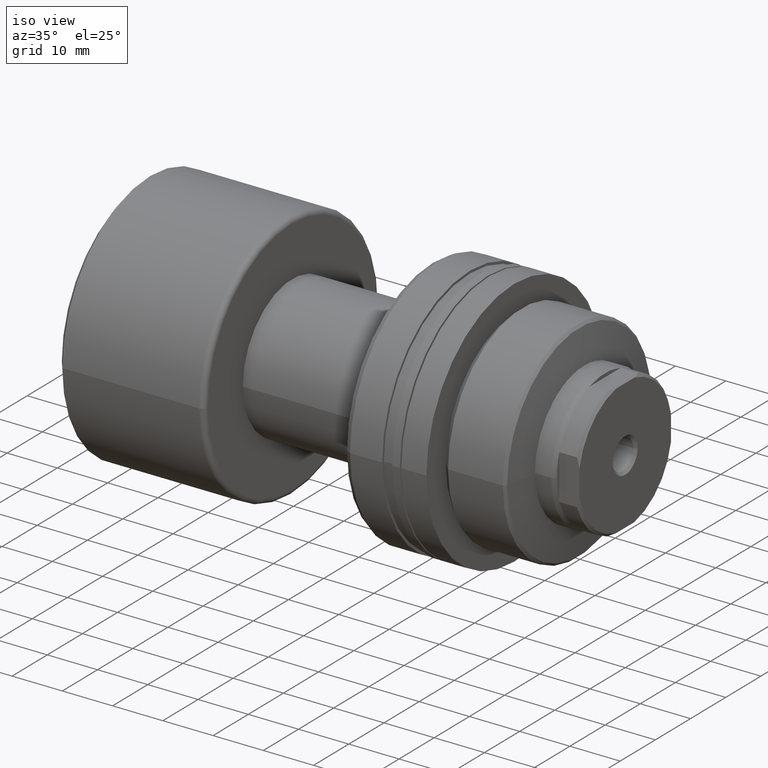
[diagram: clean part render]
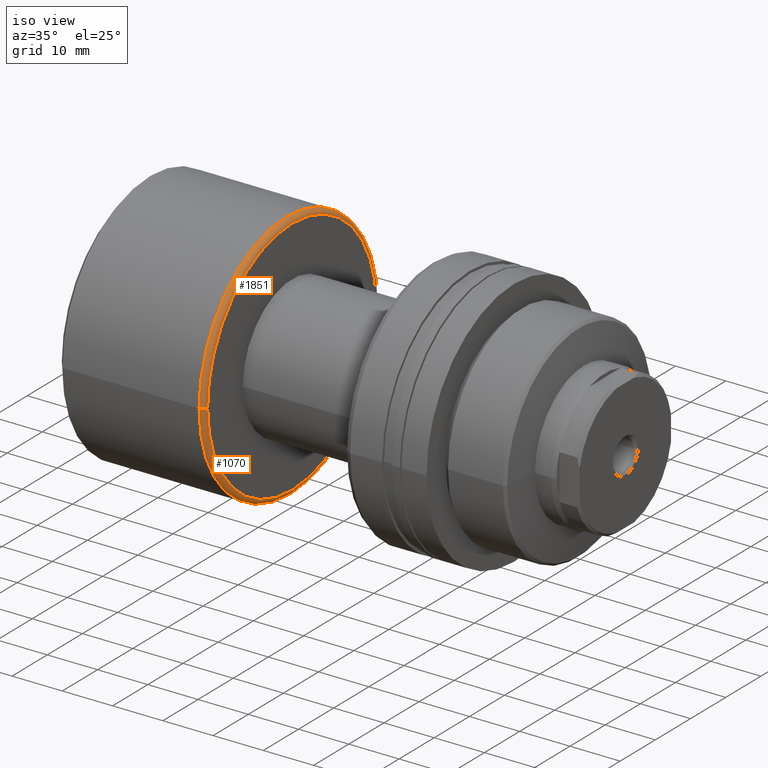
[diagram: same view with one multi-face feature highlighted, each face labeled with its STEP entity id]
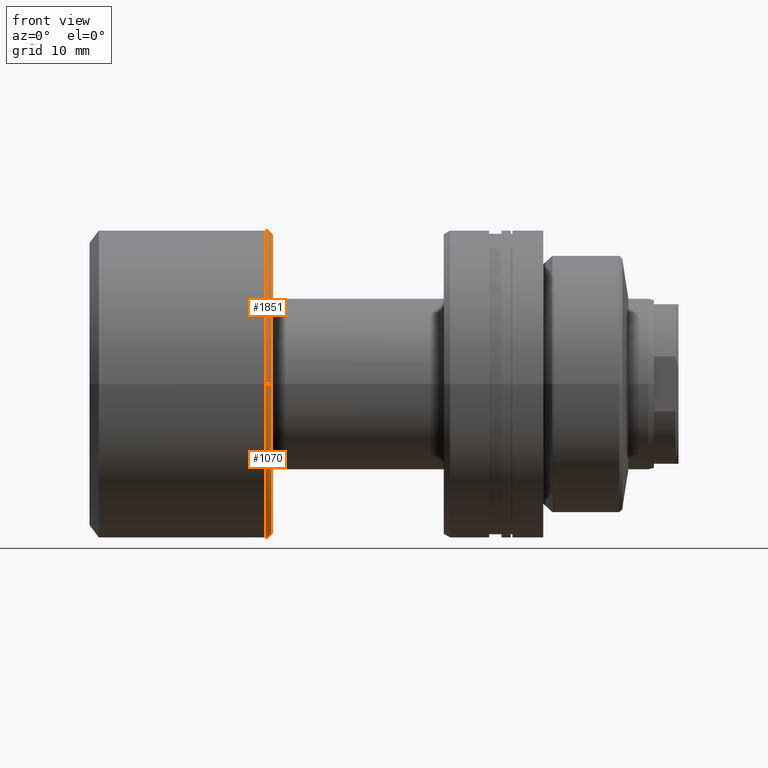
[diagram: same view with one multi-face feature highlighted, each face labeled with its STEP entity id]
A machine part, iso view. The highlighted faces form ONE feature: a constant-radius fillet chain: 2 tangent blend faces with common blend radius 1 mm. The faces share edges in the B-rep.
A second angle (front view) of the same feature is appended — it is thin or edge-on in the first view.
Their STEP definitions:
[1] entity #1851 (Torus):
#4 = CARTESIAN_POINT ( 'NONE',  ( 29.69999999999999574, -24.00000000000000000, 0.000000000000000000 ) ) ;
#23 = DIRECTION ( 'NONE',  ( -1.000000000000000000, -1.069542322069065801E-17, -0.000000000000000000 ) ) ;
#107 = CARTESIAN_POINT ( 'NONE',  ( 28.69999999999999574, -25.00000000000000000, 0.000000000000000000 ) ) ;
#162 = AXIS2_PLACEMENT_3D ( 'NONE', #1626, #907, #1438 ) ;
#184 = DIRECTION ( 'NONE',  ( 0.000000000000000000, -1.000000000000000000, -1.224646799147353454E-16 ) ) ;
#244 = EDGE_CURVE ( 'NONE', #1840, #2030, #2017, .T. ) ;
#331 = CARTESIAN_POINT ( 'NONE',  ( 29.69999999999999574, 3.176540696545125501E-16, 0.000000000000000000 ) ) ;
#507 = AXIS2_PLACEMENT_3D ( 'NONE', #1802, #23, #575 ) ;
#543 = DIRECTION ( 'NONE',  ( 0.000000000000000000, -1.000000000000000000, 0.000000000000000000 ) ) ;
#575 = DIRECTION ( 'NONE',  ( 1.069542322069065955E-17, -1.000000000000000000, 0.000000000000000000 ) ) ;
#613 = TOROIDAL_SURFACE ( 'NONE', #507, 24.00000000000000000, 1.000000000000000888 ) ;
#717 = CIRCLE ( 'NONE', #162, 1.000000000000000888 ) ;
#740 = VERTEX_POINT ( 'NONE', #4 ) ;
#892 = CARTESIAN_POINT ( 'NONE',  ( 28.69999999999999574, 24.00000000000000000, 2.939152317953647894E-15 ) ) ;
#893 = AXIS2_PLACEMENT_3D ( 'NONE', #892, #1437, #184 ) ;
#907 = DIRECTION ( 'NONE',  ( 0.000000000000000000, 0.000000000000000000, -1.000000000000000000 ) ) ;
#980 = EDGE_CURVE ( 'NONE', #2122, #2030, #1944, .T. ) ;
#1097 = ORIENTED_EDGE ( 'NONE', *, *, #2286, .T. ) ;
#1385 = ORIENTED_EDGE ( 'NONE', *, *, #1906, .F. ) ;
#1392 = FACE_OUTER_BOUND ( 'NONE', #2309, .T. ) ;
#1437 = DIRECTION ( 'NONE',  ( 1.309811581274509052E-33, -1.224646799147353207E-16, 1.000000000000000000 ) ) ;
#1438 = DIRECTION ( 'NONE',  ( -1.000000000000000000, 0.000000000000000000, 0.000000000000000000 ) ) ;
#1626 = CARTESIAN_POINT ( 'NONE',  ( 28.69999999999999574, -24.00000000000000000, 0.000000000000000000 ) ) ;
#1655 = CARTESIAN_POINT ( 'NONE',  ( 28.69999999999999574, 3.069586464338218566E-16, 0.000000000000000000 ) ) ;
#1724 = AXIS2_PLACEMENT_3D ( 'NONE', #331, #2311, #543 ) ;
#1757 = CIRCLE ( 'NONE', #1724, 24.00000000000000000 ) ;
#1799 = DIRECTION ( 'NONE',  ( 0.000000000000000000, -1.000000000000000000, 0.000000000000000000 ) ) ;
#1802 = CARTESIAN_POINT ( 'NONE',  ( 28.69999999999999574, 0.000000000000000000, 0.000000000000000000 ) ) ;
#1819 = DIRECTION ( 'NONE',  ( -1.000000000000000000, -1.069542322069065801E-17, -0.000000000000000000 ) ) ;
#1840 = VERTEX_POINT ( 'NONE', #1961 ) ;
#1850 = CARTESIAN_POINT ( 'NONE',  ( 28.69999999999999574, 25.00000000000000000, 3.061616997868383043E-15 ) ) ;
#1851 = ADVANCED_FACE ( 'NONE', ( #1392 ), #613, .T. ) ;
#1906 = EDGE_CURVE ( 'NONE', #740, #2122, #717, .T. ) ;
#1931 = ORIENTED_EDGE ( 'NONE', *, *, #244, .T. ) ;
#1944 = CIRCLE ( 'NONE', #2022, 25.00000000000000000 ) ;
#1961 = CARTESIAN_POINT ( 'NONE',  ( 29.69999999999999574, 24.00000000000000000, 3.000384657911015469E-15 ) ) ;
#2017 = CIRCLE ( 'NONE', #893, 1.000000000000000888 ) ;
#2022 = AXIS2_PLACEMENT_3D ( 'NONE', #1655, #1819, #1799 ) ;
#2030 = VERTEX_POINT ( 'NONE', #1850 ) ;
#2122 = VERTEX_POINT ( 'NONE', #107 ) ;
#2200 = ORIENTED_EDGE ( 'NONE', *, *, #980, .F. ) ;
#2286 = EDGE_CURVE ( 'NONE', #740, #1840, #1757, .T. ) ;
#2309 = EDGE_LOOP ( 'NONE', ( #1097, #1931, #2200, #1385 ) ) ;
#2311 = DIRECTION ( 'NONE',  ( -1.000000000000000000, -1.069542322069065801E-17, -0.000000000000000000 ) ) ;
[2] entity #1070 (Torus):
#4 = CARTESIAN_POINT ( 'NONE',  ( 29.69999999999999574, -24.00000000000000000, 0.000000000000000000 ) ) ;
#6 = ORIENTED_EDGE ( 'NONE', *, *, #1906, .T. ) ;
#100 = CARTESIAN_POINT ( 'NONE',  ( 28.69999999999999574, 0.000000000000000000, 0.000000000000000000 ) ) ;
#107 = CARTESIAN_POINT ( 'NONE',  ( 28.69999999999999574, -25.00000000000000000, 0.000000000000000000 ) ) ;
#126 = DIRECTION ( 'NONE',  ( 1.069542322069065955E-17, -1.000000000000000000, 0.000000000000000000 ) ) ;
#162 = AXIS2_PLACEMENT_3D ( 'NONE', #1626, #907, #1438 ) ;
#184 = DIRECTION ( 'NONE',  ( 0.000000000000000000, -1.000000000000000000, -1.224646799147353454E-16 ) ) ;
#244 = EDGE_CURVE ( 'NONE', #1840, #2030, #2017, .T. ) ;
#293 = CARTESIAN_POINT ( 'NONE',  ( 29.69999999999999574, 3.176540696545125501E-16, 0.000000000000000000 ) ) ;
#460 = DIRECTION ( 'NONE',  ( -1.000000000000000000, -1.069542322069065801E-17, -0.000000000000000000 ) ) ;
#648 = DIRECTION ( 'NONE',  ( -1.000000000000000000, -1.069542322069065801E-17, -0.000000000000000000 ) ) ;
#699 = EDGE_CURVE ( 'NONE', #1840, #740, #1901, .T. ) ;
#717 = CIRCLE ( 'NONE', #162, 1.000000000000000888 ) ;
#738 = ORIENTED_EDGE ( 'NONE', *, *, #699, .T. ) ;
#740 = VERTEX_POINT ( 'NONE', #4 ) ;
#804 = ORIENTED_EDGE ( 'NONE', *, *, #244, .F. ) ;
#892 = CARTESIAN_POINT ( 'NONE',  ( 28.69999999999999574, 24.00000000000000000, 2.939152317953647894E-15 ) ) ;
#893 = AXIS2_PLACEMENT_3D ( 'NONE', #892, #1437, #184 ) ;
#907 = DIRECTION ( 'NONE',  ( 0.000000000000000000, 0.000000000000000000, -1.000000000000000000 ) ) ;
#1023 = DIRECTION ( 'NONE',  ( 0.000000000000000000, -1.000000000000000000, 0.000000000000000000 ) ) ;
#1070 = ADVANCED_FACE ( 'NONE', ( #2090 ), #1454, .T. ) ;
#1344 = DIRECTION ( 'NONE',  ( -1.000000000000000000, -1.069542322069065801E-17, -0.000000000000000000 ) ) ;
#1437 = DIRECTION ( 'NONE',  ( 1.309811581274509052E-33, -1.224646799147353207E-16, 1.000000000000000000 ) ) ;
#1438 = DIRECTION ( 'NONE',  ( -1.000000000000000000, 0.000000000000000000, 0.000000000000000000 ) ) ;
#1454 = TOROIDAL_SURFACE ( 'NONE', #1677, 24.00000000000000000, 1.000000000000000888 ) ;
#1456 = AXIS2_PLACEMENT_3D ( 'NONE', #2249, #648, #1023 ) ;
#1530 = AXIS2_PLACEMENT_3D ( 'NONE', #293, #460, #1911 ) ;
#1588 = ORIENTED_EDGE ( 'NONE', *, *, #1658, .F. ) ;
#1626 = CARTESIAN_POINT ( 'NONE',  ( 28.69999999999999574, -24.00000000000000000, 0.000000000000000000 ) ) ;
#1658 = EDGE_CURVE ( 'NONE', #2030, #2122, #2251, .T. ) ;
#1677 = AXIS2_PLACEMENT_3D ( 'NONE', #100, #1344, #126 ) ;
#1840 = VERTEX_POINT ( 'NONE', #1961 ) ;
#1850 = CARTESIAN_POINT ( 'NONE',  ( 28.69999999999999574, 25.00000000000000000, 3.061616997868383043E-15 ) ) ;
#1901 = CIRCLE ( 'NONE', #1530, 24.00000000000000000 ) ;
#1906 = EDGE_CURVE ( 'NONE', #740, #2122, #717, .T. ) ;
#1911 = DIRECTION ( 'NONE',  ( 0.000000000000000000, -1.000000000000000000, 0.000000000000000000 ) ) ;
#1961 = CARTESIAN_POINT ( 'NONE',  ( 29.69999999999999574, 24.00000000000000000, 3.000384657911015469E-15 ) ) ;
#2017 = CIRCLE ( 'NONE', #893, 1.000000000000000888 ) ;
#2030 = VERTEX_POINT ( 'NONE', #1850 ) ;
#2090 = FACE_OUTER_BOUND ( 'NONE', #2151, .T. ) ;
#2122 = VERTEX_POINT ( 'NONE', #107 ) ;
#2151 = EDGE_LOOP ( 'NONE', ( #804, #738, #6, #1588 ) ) ;
#2249 = CARTESIAN_POINT ( 'NONE',  ( 28.69999999999999574, 3.069586464338218566E-16, 0.000000000000000000 ) ) ;
#2251 = CIRCLE ( 'NONE', #1456, 25.00000000000000000 ) ;